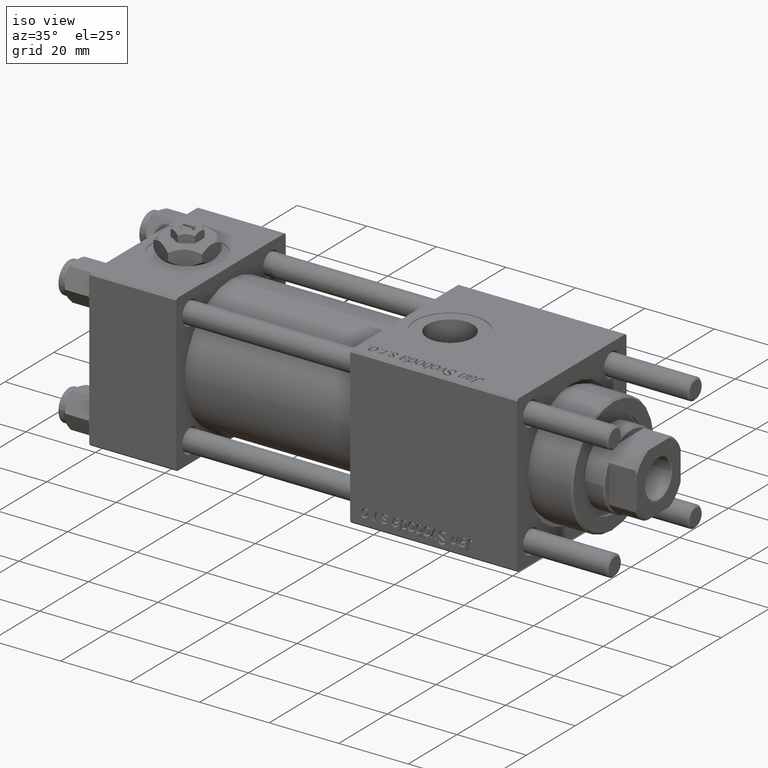
[diagram: clean part render]
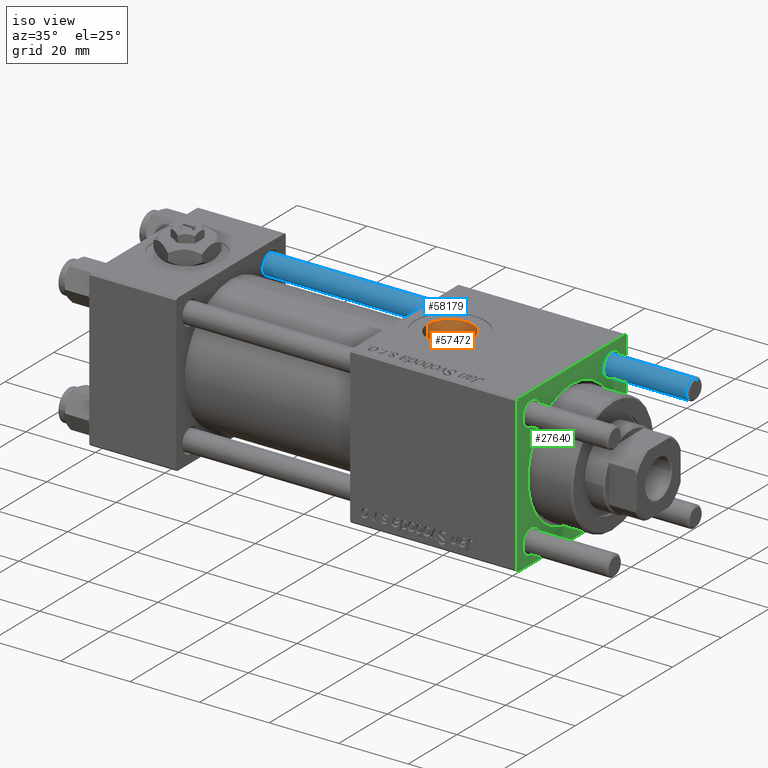
[diagram: same view with three faces highlighted in distinct colors, each labeled with its STEP entity id]
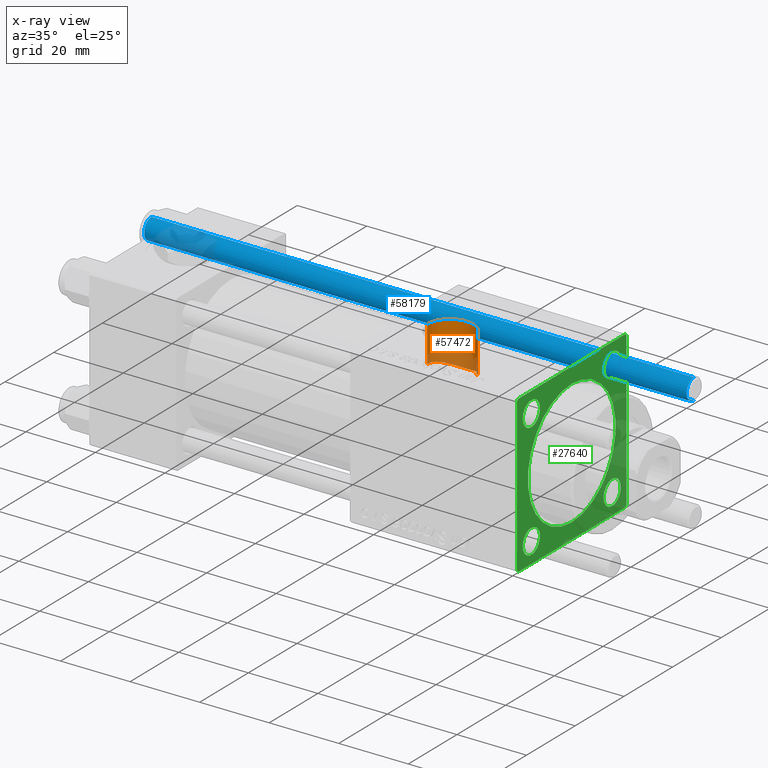
[diagram: x-ray of the same camera — body ghosted, the three highlighted faces saturated]
A machine part, iso view with three faces highlighted in distinct colors.
The next image is the same camera in x-ray (body ghosted, the three faces saturated) — at least one of them is partly hidden behind the body in this view.
Their STEP definitions:

[orange] entity #57472 — the highlighted cylindrical surface (edge-blend (fillet) strip) has radius 6.58 mm, axis along (0, 0, -1).
#9 = DIRECTION ( 'NONE',  ( 0.000000000000000000, 0.000000000000000000, -1.000000000000000000 ) ) ;
#2478 = CARTESIAN_POINT ( 'NONE',  ( 93.00866761081064737, 4.284465530078829687, 11.21374664850203651 ) ) ;
#2510 = EDGE_CURVE ( 'NONE', #25617, #51686, #4302, .T. ) ;
#2718 = VECTOR ( 'NONE', #51993, 1000.000000000000000 ) ;
#2765 = CARTESIAN_POINT ( 'NONE',  ( 94.03738513764136542, 2.645683237586368364, 11.71024983958922583 ) ) ;
#4302 = B_SPLINE_CURVE_WITH_KNOTS ( 'NONE', 3,
 ( #32579, #47095, #47383, #5925 ),
 .UNSPECIFIED., .F., .F.,
 ( 4, 4 ),
 ( 0.000000000000000000, 0.001922561461481083313 ),
 .UNSPECIFIED. ) ;
#4844 = CARTESIAN_POINT ( 'NONE',  ( 81.42000000000000171, 1.469576107744199801E-15, 12.00000000000000178 ) ) ;
#5451 = CARTESIAN_POINT ( 'NONE',  ( 82.78475287781570557, 4.030653862891778516, 11.30711776153493808 ) ) ;
#5739 = CARTESIAN_POINT ( 'NONE',  ( 81.42000000000004434, 0.3976591527617308608, 12.00000000000000533 ) ) ;
#5925 = CARTESIAN_POINT ( 'NONE',  ( 94.58000000000001251, 2.020172399822898567E-15, 16.50000000000000000 ) ) ;
#6623 = CARTESIAN_POINT ( 'NONE',  ( 89.01891393464315172, 6.512687558946026911, 10.07943174470872272 ) ) ;
#7214 = CARTESIAN_POINT ( 'NONE',  ( 91.23583201536588660, 5.742247844999425865, 10.53951819678818680 ) ) ;
#7333 = CARTESIAN_POINT ( 'NONE',  ( 94.30000000000001137, 1.899052395275078853, 11.84878052796995718 ) ) ;
#7508 = CARTESIAN_POINT ( 'NONE',  ( 88.61588198934801142, 6.563160196869033847, 10.04615237361005953 ) ) ;
#7810 = VECTOR ( 'NONE', #15088, 1000.000000000000000 ) ;
#9782 = CARTESIAN_POINT ( 'NONE',  ( 88.00000000000001421, -5.204170427930420494E-15, 45.29999999999999005 ) ) ;
#9893 = CARTESIAN_POINT ( 'NONE',  ( 84.16489446748850867, 5.350277438619694514, 10.74193308139748204 ) ) ;
#10480 = CARTESIAN_POINT ( 'NONE',  ( 81.45705646777146569, 0.8024769132757282319, 11.97956798721945937 ) ) ;
#11658 = CARTESIAN_POINT ( 'NONE',  ( 94.18483796286322729, 2.281096005955299155, 11.78754883984398028 ) ) ;
#13886 = AXIS2_PLACEMENT_3D ( 'NONE', #9782, #9, #27857 ) ;
#14311 = EDGE_LOOP ( 'NONE', ( #30899, #23270, #41327, #50802, #46106, #44208 ) ) ;
#14634 = CARTESIAN_POINT ( 'NONE',  ( 84.48443970993218954, 5.565459456558937035, 10.63203912863488831 ) ) ;
#15088 = DIRECTION ( 'NONE',  ( 0.000000000000000000, 0.000000000000000000, -1.000000000000000000 ) ) ;
#15875 = VERTEX_POINT ( 'NONE', #50671 ) ;
#16099 = CARTESIAN_POINT ( 'NONE',  ( 85.51128222741164109, 6.103612828859660944, 10.33283268697370794 ) ) ;
#16394 = CARTESIAN_POINT ( 'NONE',  ( 90.16689331473169489, 6.225350826966485229, 10.26038999243691663 ) ) ;
#16820 = VERTEX_POINT ( 'NONE', #38820 ) ;
#18478 = CARTESIAN_POINT ( 'NONE',  ( 82.55681353800792976, 3.717176390455099622, 11.41498337564068599 ) ) ;
#18781 = CARTESIAN_POINT ( 'NONE',  ( 82.25859302551884866, 3.220243119365621798, 11.56113513882421096 ) ) ;
#19070 = CARTESIAN_POINT ( 'NONE',  ( 81.99551268624995259, 2.698274377936877855, 11.69410398929686501 ) ) ;
#20824 = CARTESIAN_POINT ( 'NONE',  ( 89.79279569586574894, 6.343435066235461051, 10.18679906040885719 ) ) ;
#21677 = B_SPLINE_CURVE_WITH_KNOTS ( 'NONE', 3,
 ( #4844, #5739, #10480, #46607, #37705, #28541, #19070, #42151, #18781, #18478, #5451, #37116, #36825, #54892, #9893, #14634, #55189, #34148, #16099, #52210, #24989, #56071, #25560, #47196, #25278, #7508, #6623, #20824, #16394, #47783, #7214, #46897, #43046, #48071, #2478, #30006, #43343, #2765, #11658, #38878 ),
 .UNSPECIFIED., .F., .F.,
 ( 4, 2, 2, 2, 2, 2, 2, 2, 2, 2, 2, 2, 2, 2, 2, 2, 2, 2, 2, 4 ),
 ( 0.01908272948376852837, 0.02027211068882234235, 0.02146149189387615633, 0.02205618249640306158, 0.02265087309892997031, 0.02384025430398376347, 0.02502963550903755663, 0.02562432611156446882, 0.02621901671409138102, 0.02740839791914520540, 0.02800308852167211413, 0.02859777912419902285, 0.02978716032925284724, 0.03097654153430666815, 0.03216592273936048907, 0.03335530394441431346, 0.03454468514946813784, 0.03573406635452195529, 0.03692344755957577968, 0.03811282876462960406 ),
 .UNSPECIFIED. ) ;
#22557 = EDGE_CURVE ( 'NONE', #16820, #39659, #21677, .T. ) ;
#23270 = ORIENTED_EDGE ( 'NONE', *, *, #29470, .F. ) ;
#23433 = CARTESIAN_POINT ( 'NONE',  ( 88.00000000000001421, -5.204170427930420494E-15, 22.29999999999999716 ) ) ;
#24989 = CARTESIAN_POINT ( 'NONE',  ( 86.25189730832173041, 6.346629913135778622, 10.18446595840853597 ) ) ;
#25278 = CARTESIAN_POINT ( 'NONE',  ( 87.82138093783677846, 6.589573402368412047, 10.02884697551796478 ) ) ;
#25560 = CARTESIAN_POINT ( 'NONE',  ( 86.83419489992905937, 6.478967816313746297, 10.10070273480327430 ) ) ;
#25600 = EDGE_CURVE ( 'NONE', #25617, #39659, #42132, .T. ) ;
#25617 = VERTEX_POINT ( 'NONE', #42719 ) ;
#27580 = DIRECTION ( 'NONE',  ( 1.000000000000000000, 0.000000000000000000, 0.000000000000000000 ) ) ;
#27656 = CARTESIAN_POINT ( 'NONE',  ( 94.58000000000001251, 2.020172399822898567E-15, 16.50000000000000000 ) ) ;
#27857 = DIRECTION ( 'NONE',  ( -1.000000000000000000, 0.000000000000000000, 0.000000000000000000 ) ) ;
#28522 = CARTESIAN_POINT ( 'NONE',  ( 94.30000000000001137, 1.899052395275078853, 45.29999999999999005 ) ) ;
#28541 = CARTESIAN_POINT ( 'NONE',  ( 81.91700611386447406, 2.516447426058158410, 11.73468626117324298 ) ) ;
#29470 = EDGE_CURVE ( 'NONE', #39161, #15875, #37642, .T. ) ;
#30006 = CARTESIAN_POINT ( 'NONE',  ( 93.47237423914735643, 3.673760512163765313, 11.42839632120319138 ) ) ;
#30007 = EDGE_CURVE ( 'NONE', #39161, #16820, #38368, .T. ) ;
#30899 = ORIENTED_EDGE ( 'NONE', *, *, #41439, .F. ) ;
#32579 = CARTESIAN_POINT ( 'NONE',  ( 94.30000000000001137, 1.899052395275078853, 16.39035081991841025 ) ) ;
#32662 = DIRECTION ( 'NONE',  ( 0.000000000000000000, 0.000000000000000000, -1.000000000000000000 ) ) ;
#32854 = CARTESIAN_POINT ( 'NONE',  ( 94.58000000000001251, -4.398352834091461452E-15, 45.29999999999999005 ) ) ;
#34052 = CARTESIAN_POINT ( 'NONE',  ( 81.42000000000000171, -5.204170427930420494E-15, 22.29999999999999716 ) ) ;
#34148 = CARTESIAN_POINT ( 'NONE',  ( 85.15847559875078332, 5.947407073964698476, 10.42466916922575493 ) ) ;
#36825 = CARTESIAN_POINT ( 'NONE',  ( 83.56581515316379694, 4.876481215027403060, 10.96769431425572172 ) ) ;
#37116 = CARTESIAN_POINT ( 'NONE',  ( 83.29103396094789957, 4.612007366749330650, 11.08271043945085843 ) ) ;
#37642 = CIRCLE ( 'NONE', #45206, 6.580000000000002736 ) ;
#37705 = CARTESIAN_POINT ( 'NONE',  ( 81.70724907846415874, 1.963001504588604673, 11.84432785252562326 ) ) ;
#38368 = LINE ( 'NONE', #56439, #2718 ) ;
#38820 = CARTESIAN_POINT ( 'NONE',  ( 81.42000000000000171, 1.469576107744199801E-15, 12.00000000000000178 ) ) ;
#38878 = CARTESIAN_POINT ( 'NONE',  ( 94.30000000000001137, 1.899052395275078853, 11.84878052796995718 ) ) ;
#39161 = VERTEX_POINT ( 'NONE', #34052 ) ;
#39659 = VERTEX_POINT ( 'NONE', #7333 ) ;
#40571 = FACE_OUTER_BOUND ( 'NONE', #14311, .T. ) ;
#41327 = ORIENTED_EDGE ( 'NONE', *, *, #30007, .T. ) ;
#41439 = EDGE_CURVE ( 'NONE', #15875, #51686, #50614, .T. ) ;
#41497 = DIRECTION ( 'NONE',  ( -0.000000000000000000, -0.000000000000000000, -1.000000000000000000 ) ) ;
#42132 = LINE ( 'NONE', #28522, #47000 ) ;
#42151 = CARTESIAN_POINT ( 'NONE',  ( 82.16614062154590670, 3.049694619472453017, 11.60741639897010735 ) ) ;
#42719 = CARTESIAN_POINT ( 'NONE',  ( 94.30000000000001137, 1.899052395275078853, 16.39035081991841025 ) ) ;
#43046 = CARTESIAN_POINT ( 'NONE',  ( 92.18812012102893050, 5.089576879915268748, 10.87095059937355934 ) ) ;
#43343 = CARTESIAN_POINT ( 'NONE',  ( 93.68108973531616357, 3.342884759177825238, 11.53059896909529591 ) ) ;
#44208 = ORIENTED_EDGE ( 'NONE', *, *, #2510, .T. ) ;
#45206 = AXIS2_PLACEMENT_3D ( 'NONE', #23433, #41497, #27580 ) ;
#46106 = ORIENTED_EDGE ( 'NONE', *, *, #25600, .F. ) ;
#46607 = CARTESIAN_POINT ( 'NONE',  ( 81.60104442533068436, 1.583491968934688687, 11.90153652017558450 ) ) ;
#46897 = CARTESIAN_POINT ( 'NONE',  ( 91.88215370346611621, 5.326621984685210087, 10.75555448901162414 ) ) ;
#47000 = VECTOR ( 'NONE', #32662, 1000.000000000000000 ) ;
#47095 = CARTESIAN_POINT ( 'NONE',  ( 94.48644965059656897, 1.280516118087120070, 16.46201693687124745 ) ) ;
#47196 = CARTESIAN_POINT ( 'NONE',  ( 87.42561790000441135, 6.566992248200678617, 10.04387831561290234 ) ) ;
#47383 = CARTESIAN_POINT ( 'NONE',  ( 94.58000000000001251, 0.6476041116638452388, 16.50000000000000000 ) ) ;
#47783 = CARTESIAN_POINT ( 'NONE',  ( 90.89150051817900078, 5.923651265023259782, 10.43747821104793339 ) ) ;
#48071 = CARTESIAN_POINT ( 'NONE',  ( 92.75223196117465818, 4.567322448867138007, 11.10049212416560493 ) ) ;
#50614 = LINE ( 'NONE', #32854, #7810 ) ;
#50671 = CARTESIAN_POINT ( 'NONE',  ( 94.58000000000001251, -4.398352834091461452E-15, 22.29999999999999716 ) ) ;
#50802 = ORIENTED_EDGE ( 'NONE', *, *, #22557, .T. ) ;
#51686 = VERTEX_POINT ( 'NONE', #27656 ) ;
#51993 = DIRECTION ( 'NONE',  ( 0.000000000000000000, 0.000000000000000000, -1.000000000000000000 ) ) ;
#52210 = CARTESIAN_POINT ( 'NONE',  ( 86.06381098789942996, 6.291694806526731298, 10.21860835373034782 ) ) ;
#54787 = CYLINDRICAL_SURFACE ( 'NONE', #13886, 6.580000000000002736 ) ;
#54892 = CARTESIAN_POINT ( 'NONE',  ( 84.01097073899009615, 5.236455063200054383, 10.79801533958693049 ) ) ;
#55189 = CARTESIAN_POINT ( 'NONE',  ( 84.65070684754140018, 5.667099199368138329, 10.57805895296173126 ) ) ;
#56071 = CARTESIAN_POINT ( 'NONE',  ( 86.63652304892134737, 6.440225530122367203, 10.12553965146808110 ) ) ;
#56439 = CARTESIAN_POINT ( 'NONE',  ( 81.42000000000000171, -5.204170427930420494E-15, 45.29999999999999005 ) ) ;
#57472 = ADVANCED_FACE ( 'NONE', ( #40571 ), #54787, .F. ) ;

[blue] entity #58179 — the highlighted cylindrical surface (edge-blend (fillet) strip) has radius 3 mm, axis along (1, -0, -0).
#330 = CIRCLE ( 'NONE', #40852, 3.000000000000000444 ) ;
#687 = CYLINDRICAL_SURFACE ( 'NONE', #20490, 3.000000000000000444 ) ;
#924 = VECTOR ( 'NONE', #56986, 1000.000000000000000 ) ;
#3146 = DIRECTION ( 'NONE',  ( 1.000000000000000000, 0.000000000000000000, 0.000000000000000000 ) ) ;
#5346 = EDGE_CURVE ( 'NONE', #11805, #52071, #330, .T. ) ;
#8170 = CARTESIAN_POINT ( 'NONE',  ( 3.000000000000000444, 3.673940397442060361E-16, 156.5000000000000284 ) ) ;
#9765 = CARTESIAN_POINT ( 'NONE',  ( 0.000000000000000000, 0.000000000000000000, 0.4999999999999726885 ) ) ;
#11277 = CARTESIAN_POINT ( 'NONE',  ( 0.000000000000000000, 0.000000000000000000, 157.0000000000000000 ) ) ;
#11587 = CARTESIAN_POINT ( 'NONE',  ( 3.000000000000000444, 3.673940397442060361E-16, 0.4999999999999726885 ) ) ;
#11805 = VERTEX_POINT ( 'NONE', #20062 ) ;
#13445 = VERTEX_POINT ( 'NONE', #8170 ) ;
#18227 = CARTESIAN_POINT ( 'NONE',  ( -3.000000000000000444, 0.000000000000000000, 156.5000000000000284 ) ) ;
#18748 = FACE_OUTER_BOUND ( 'NONE', #56480, .T. ) ;
#20062 = CARTESIAN_POINT ( 'NONE',  ( -3.000000000000000444, 0.000000000000000000, 0.4999999999999726885 ) ) ;
#20490 = AXIS2_PLACEMENT_3D ( 'NONE', #11277, #37085, #29329 ) ;
#21299 = LINE ( 'NONE', #39360, #35101 ) ;
#24463 = VERTEX_POINT ( 'NONE', #18227 ) ;
#24523 = ORIENTED_EDGE ( 'NONE', *, *, #32178, .F. ) ;
#24667 = DIRECTION ( 'NONE',  ( 1.000000000000000000, 0.000000000000000000, 0.000000000000000000 ) ) ;
#27838 = DIRECTION ( 'NONE',  ( -0.000000000000000000, -0.000000000000000000, 1.000000000000000000 ) ) ;
#29329 = DIRECTION ( 'NONE',  ( -1.000000000000000000, 0.000000000000000000, 0.000000000000000000 ) ) ;
#32178 = EDGE_CURVE ( 'NONE', #13445, #52071, #52544, .T. ) ;
#32962 = CARTESIAN_POINT ( 'NONE',  ( 0.000000000000000000, 0.000000000000000000, 156.5000000000000284 ) ) ;
#35101 = VECTOR ( 'NONE', #57421, 1000.000000000000000 ) ;
#37085 = DIRECTION ( 'NONE',  ( -0.000000000000000000, -0.000000000000000000, -1.000000000000000000 ) ) ;
#38162 = EDGE_CURVE ( 'NONE', #24463, #11805, #21299, .T. ) ;
#39360 = CARTESIAN_POINT ( 'NONE',  ( -3.000000000000000444, 0.000000000000000000, 157.0000000000000000 ) ) ;
#40801 = EDGE_CURVE ( 'NONE', #13445, #24463, #45585, .T. ) ;
#40852 = AXIS2_PLACEMENT_3D ( 'NONE', #9765, #27838, #3146 ) ;
#43031 = DIRECTION ( 'NONE',  ( 0.000000000000000000, 0.000000000000000000, -1.000000000000000000 ) ) ;
#43742 = AXIS2_PLACEMENT_3D ( 'NONE', #32962, #43031, #24667 ) ;
#45530 = ORIENTED_EDGE ( 'NONE', *, *, #40801, .T. ) ;
#45585 = CIRCLE ( 'NONE', #43742, 3.000000000000000444 ) ;
#49617 = ORIENTED_EDGE ( 'NONE', *, *, #38162, .T. ) ;
#51838 = ORIENTED_EDGE ( 'NONE', *, *, #5346, .T. ) ;
#52071 = VERTEX_POINT ( 'NONE', #11587 ) ;
#52544 = LINE ( 'NONE', #53625, #924 ) ;
#53625 = CARTESIAN_POINT ( 'NONE',  ( 3.000000000000000444, 3.673940397442060361E-16, 157.0000000000000000 ) ) ;
#56480 = EDGE_LOOP ( 'NONE', ( #24523, #45530, #49617, #51838 ) ) ;
#56986 = DIRECTION ( 'NONE',  ( -0.000000000000000000, -0.000000000000000000, -1.000000000000000000 ) ) ;
#57421 = DIRECTION ( 'NONE',  ( -0.000000000000000000, -0.000000000000000000, -1.000000000000000000 ) ) ;
#58179 = ADVANCED_FACE ( 'NONE', ( #18748 ), #687, .T. ) ;

[green] entity #27640 — the highlighted planar face has unit normal (-1, 0, 0).
#273 = DIRECTION ( 'NONE',  ( -1.000000000000000000, 0.000000000000000000, -0.000000000000000000 ) ) ;
#382 = CARTESIAN_POINT ( 'NONE',  ( 123.0000000000000142, 16.59999999999999787, 13.09999999999997300 ) ) ;
#1161 = CARTESIAN_POINT ( 'NONE',  ( 123.0000000000000142, 0.000000000000000000, 0.000000000000000000 ) ) ;
#1191 = CIRCLE ( 'NONE', #46589, 3.500000000000031086 ) ;
#1941 = ORIENTED_EDGE ( 'NONE', *, *, #50780, .T. ) ;
#1994 = DIRECTION ( 'NONE',  ( -1.000000000000000000, 0.000000000000000000, -0.000000000000000000 ) ) ;
#2506 = CARTESIAN_POINT ( 'NONE',  ( 123.0000000000000142, 16.59999999999999787, 20.10000000000003340 ) ) ;
#2572 = AXIS2_PLACEMENT_3D ( 'NONE', #50583, #46159, #9727 ) ;
#3548 = EDGE_CURVE ( 'NONE', #10118, #57311, #25793, .T. ) ;
#3732 = EDGE_CURVE ( 'NONE', #47699, #27534, #1191, .T. ) ;
#3822 = VERTEX_POINT ( 'NONE', #15051 ) ;
#4417 = LINE ( 'NONE', #58589, #54315 ) ;
#4467 = EDGE_LOOP ( 'NONE', ( #28381, #41506 ) ) ;
#5021 = LINE ( 'NONE', #11171, #6938 ) ;
#5606 = FACE_BOUND ( 'NONE', #52136, .T. ) ;
#5768 = AXIS2_PLACEMENT_3D ( 'NONE', #51722, #29223, #38687 ) ;
#6435 = LINE ( 'NONE', #9695, #52605 ) ;
#6532 = CARTESIAN_POINT ( 'NONE',  ( 123.0000000000000142, -22.49999999999999645, 22.00000000000000711 ) ) ;
#6938 = VECTOR ( 'NONE', #11456, 1000.000000000000000 ) ;
#7982 = VERTEX_POINT ( 'NONE', #24925 ) ;
#8266 = EDGE_LOOP ( 'NONE', ( #17933, #11308 ) ) ;
#8545 = DIRECTION ( 'NONE',  ( 0.000000000000000000, 0.000000000000000000, 1.000000000000000000 ) ) ;
#8596 = AXIS2_PLACEMENT_3D ( 'NONE', #53883, #44718, #12757 ) ;
#8896 = LINE ( 'NONE', #31105, #40319 ) ;
#9147 = DIRECTION ( 'NONE',  ( 0.000000000000000000, 0.000000000000000000, 1.000000000000000000 ) ) ;
#9652 = AXIS2_PLACEMENT_3D ( 'NONE', #54061, #31554, #16813 ) ;
#9678 = EDGE_CURVE ( 'NONE', #52539, #37418, #5021, .T. ) ;
#9695 = CARTESIAN_POINT ( 'NONE',  ( 123.0000000000000142, 22.50000000000000355, 22.50000000000000355 ) ) ;
#9727 = DIRECTION ( 'NONE',  ( 0.000000000000000000, 0.000000000000000000, 1.000000000000000000 ) ) ;
#9738 = DIRECTION ( 'NONE',  ( -1.000000000000000000, 0.000000000000000000, -0.000000000000000000 ) ) ;
#10118 = VERTEX_POINT ( 'NONE', #10799 ) ;
#10186 = CIRCLE ( 'NONE', #29087, 18.00000000000000355 ) ;
#10429 = CARTESIAN_POINT ( 'NONE',  ( 123.0000000000000142, -16.59999999999999076, -20.10000000000003695 ) ) ;
#10799 = CARTESIAN_POINT ( 'NONE',  ( 123.0000000000000142, 2.204364238465235822E-15, 18.00000000000000355 ) ) ;
#11171 = CARTESIAN_POINT ( 'NONE',  ( 123.0000000000000142, 22.50000000000000355, -22.49999999999999645 ) ) ;
#11308 = ORIENTED_EDGE ( 'NONE', *, *, #3548, .T. ) ;
#11456 = DIRECTION ( 'NONE',  ( 0.000000000000000000, -1.000000000000000000, -7.709882115452476934E-17 ) ) ;
#11470 = CARTESIAN_POINT ( 'NONE',  ( 123.0000000000000142, -16.59999999999999076, -16.60000000000000853 ) ) ;
#12151 = CARTESIAN_POINT ( 'NONE',  ( 123.0000000000000142, 0.000000000000000000, 0.000000000000000000 ) ) ;
#12757 = DIRECTION ( 'NONE',  ( 0.000000000000000000, 0.000000000000000000, 1.000000000000000000 ) ) ;
#13001 = VERTEX_POINT ( 'NONE', #30304 ) ;
#13011 = VECTOR ( 'NONE', #18168, 1000.000000000000000 ) ;
#13232 = VERTEX_POINT ( 'NONE', #35466 ) ;
#13322 = DIRECTION ( 'NONE',  ( -0.000000000000000000, 0.000000000000000000, 1.000000000000000000 ) ) ;
#13671 = VERTEX_POINT ( 'NONE', #25582 ) ;
#14077 = DIRECTION ( 'NONE',  ( 0.000000000000000000, 0.000000000000000000, 1.000000000000000000 ) ) ;
#14197 = CARTESIAN_POINT ( 'NONE',  ( 123.0000000000000142, -22.49999999999999645, 22.00000000000000711 ) ) ;
#15026 = DIRECTION ( 'NONE',  ( 0.000000000000000000, 0.000000000000000000, -1.000000000000000000 ) ) ;
#15029 = CARTESIAN_POINT ( 'NONE',  ( 123.0000000000000142, -21.99999999999998224, -22.50000000000000000 ) ) ;
#15051 = CARTESIAN_POINT ( 'NONE',  ( 123.0000000000000142, -22.49999999999999645, -21.99999999999997868 ) ) ;
#15897 = AXIS2_PLACEMENT_3D ( 'NONE', #1161, #273, #13322 ) ;
#16251 = ORIENTED_EDGE ( 'NONE', *, *, #21761, .T. ) ;
#16813 = DIRECTION ( 'NONE',  ( 0.000000000000000000, 0.000000000000000000, 1.000000000000000000 ) ) ;
#17933 = ORIENTED_EDGE ( 'NONE', *, *, #22333, .T. ) ;
#18069 = CIRCLE ( 'NONE', #44572, 3.500000000000031086 ) ;
#18168 = DIRECTION ( 'NONE',  ( -0.000000000000000000, 0.7071067811865573427, 0.7071067811865378028 ) ) ;
#18509 = DIRECTION ( 'NONE',  ( -1.000000000000000000, 0.000000000000000000, -0.000000000000000000 ) ) ;
#19044 = ORIENTED_EDGE ( 'NONE', *, *, #40522, .T. ) ;
#19553 = CARTESIAN_POINT ( 'NONE',  ( 123.0000000000000142, -21.99999999999998224, 22.49999999999999289 ) ) ;
#19943 = CIRCLE ( 'NONE', #8596, 3.499999999999989342 ) ;
#20543 = CIRCLE ( 'NONE', #25241, 3.500000000000031086 ) ;
#21139 = ORIENTED_EDGE ( 'NONE', *, *, #57468, .T. ) ;
#21761 = EDGE_CURVE ( 'NONE', #52539, #13001, #37105, .T. ) ;
#22333 = EDGE_CURVE ( 'NONE', #57311, #10118, #10186, .T. ) ;
#22804 = ORIENTED_EDGE ( 'NONE', *, *, #57070, .F. ) ;
#23071 = PLANE ( 'NONE',  #15897 ) ;
#23653 = VERTEX_POINT ( 'NONE', #2506 ) ;
#23666 = FACE_OUTER_BOUND ( 'NONE', #50884, .T. ) ;
#23770 = AXIS2_PLACEMENT_3D ( 'NONE', #41004, #18509, #14077 ) ;
#23954 = DIRECTION ( 'NONE',  ( -0.000000000000000000, -0.7071067811865573427, -0.7071067811865378028 ) ) ;
#24375 = DIRECTION ( 'NONE',  ( -1.000000000000000000, 0.000000000000000000, -0.000000000000000000 ) ) ;
#24925 = CARTESIAN_POINT ( 'NONE',  ( 123.0000000000000142, -16.59999999999999076, 20.10000000000000142 ) ) ;
#25241 = AXIS2_PLACEMENT_3D ( 'NONE', #55763, #24375, #37096 ) ;
#25582 = CARTESIAN_POINT ( 'NONE',  ( 123.0000000000000142, 21.99999999999996092, 22.50000000000000355 ) ) ;
#25583 = EDGE_CURVE ( 'NONE', #54579, #13232, #20543, .T. ) ;
#25710 = EDGE_CURVE ( 'NONE', #23653, #58152, #45076, .T. ) ;
#25721 = CARTESIAN_POINT ( 'NONE',  ( 123.0000000000000142, -22.49999999999999645, 22.49999999999999289 ) ) ;
#25793 = CIRCLE ( 'NONE', #29606, 18.00000000000000355 ) ;
#26047 = DIRECTION ( 'NONE',  ( -1.000000000000000000, 0.000000000000000000, -0.000000000000000000 ) ) ;
#26839 = CARTESIAN_POINT ( 'NONE',  ( 123.0000000000000142, 22.50000000000000355, 21.99999999999997513 ) ) ;
#27211 = ORIENTED_EDGE ( 'NONE', *, *, #41750, .T. ) ;
#27284 = CARTESIAN_POINT ( 'NONE',  ( 123.0000000000000142, 16.59999999999999787, -13.09999999999997300 ) ) ;
#27534 = VERTEX_POINT ( 'NONE', #40249 ) ;
#27640 = ADVANCED_FACE ( 'NONE', ( #5606, #54457, #53875, #32240, #50307, #23666 ), #23071, .F. ) ;
#27843 = VECTOR ( 'NONE', #23954, 1000.000000000000000 ) ;
#28381 = ORIENTED_EDGE ( 'NONE', *, *, #42740, .T. ) ;
#28406 = LINE ( 'NONE', #14197, #27843 ) ;
#28447 = VERTEX_POINT ( 'NONE', #35567 ) ;
#28484 = VECTOR ( 'NONE', #43787, 1000.000000000000000 ) ;
#29087 = AXIS2_PLACEMENT_3D ( 'NONE', #58578, #9738, #9147 ) ;
#29223 = DIRECTION ( 'NONE',  ( -1.000000000000000000, 0.000000000000000000, -0.000000000000000000 ) ) ;
#29606 = AXIS2_PLACEMENT_3D ( 'NONE', #12151, #26047, #57141 ) ;
#30304 = CARTESIAN_POINT ( 'NONE',  ( 123.0000000000000142, 22.50000000000000355, -21.99999999999999645 ) ) ;
#30907 = ORIENTED_EDGE ( 'NONE', *, *, #3732, .T. ) ;
#31105 = CARTESIAN_POINT ( 'NONE',  ( 123.0000000000000142, 22.50000000000000355, 22.50000000000000355 ) ) ;
#31554 = DIRECTION ( 'NONE',  ( -1.000000000000000000, 0.000000000000000000, -0.000000000000000000 ) ) ;
#31626 = DIRECTION ( 'NONE',  ( -1.000000000000000000, 0.000000000000000000, -0.000000000000000000 ) ) ;
#32240 = FACE_BOUND ( 'NONE', #46911, .T. ) ;
#32255 = VECTOR ( 'NONE', #51125, 999.9999999999998863 ) ;
#32396 = VERTEX_POINT ( 'NONE', #6532 ) ;
#34542 = DIRECTION ( 'NONE',  ( 0.000000000000000000, 0.000000000000000000, 1.000000000000000000 ) ) ;
#34607 = LINE ( 'NONE', #25721, #28484 ) ;
#35466 = CARTESIAN_POINT ( 'NONE',  ( 123.0000000000000142, 16.59999999999999787, -20.10000000000003340 ) ) ;
#35567 = CARTESIAN_POINT ( 'NONE',  ( 123.0000000000000142, -16.59999999999999076, 13.10000000000001741 ) ) ;
#36146 = CIRCLE ( 'NONE', #9652, 3.500000000000031086 ) ;
#36260 = ORIENTED_EDGE ( 'NONE', *, *, #25710, .T. ) ;
#36325 = EDGE_CURVE ( 'NONE', #7982, #28447, #19943, .T. ) ;
#36510 = EDGE_CURVE ( 'NONE', #32396, #3822, #34607, .T. ) ;
#36787 = EDGE_CURVE ( 'NONE', #28447, #7982, #39788, .T. ) ;
#37096 = DIRECTION ( 'NONE',  ( 0.000000000000000000, 0.000000000000000000, 1.000000000000000000 ) ) ;
#37105 = LINE ( 'NONE', #50731, #13011 ) ;
#37418 = VERTEX_POINT ( 'NONE', #15029 ) ;
#37563 = EDGE_CURVE ( 'NONE', #27534, #47699, #18069, .T. ) ;
#37632 = EDGE_LOOP ( 'NONE', ( #19044, #36260 ) ) ;
#38687 = DIRECTION ( 'NONE',  ( 0.000000000000000000, 0.000000000000000000, 1.000000000000000000 ) ) ;
#39718 = ORIENTED_EDGE ( 'NONE', *, *, #9678, .F. ) ;
#39788 = CIRCLE ( 'NONE', #5768, 3.499999999999989342 ) ;
#40249 = CARTESIAN_POINT ( 'NONE',  ( 123.0000000000000142, -16.59999999999999076, -13.09999999999997655 ) ) ;
#40319 = VECTOR ( 'NONE', #49171, 1000.000000000000000 ) ;
#40522 = EDGE_CURVE ( 'NONE', #58152, #23653, #36146, .T. ) ;
#41004 = CARTESIAN_POINT ( 'NONE',  ( 123.0000000000000142, 16.59999999999999787, -16.60000000000000497 ) ) ;
#41352 = CARTESIAN_POINT ( 'NONE',  ( 123.0000000000000142, 22.00000000000000355, -22.49999999999999645 ) ) ;
#41506 = ORIENTED_EDGE ( 'NONE', *, *, #25583, .T. ) ;
#41750 = EDGE_CURVE ( 'NONE', #3822, #37418, #42541, .T. ) ;
#42411 = CARTESIAN_POINT ( 'NONE',  ( 123.0000000000000142, 0.000000000000000000, -18.00000000000000355 ) ) ;
#42541 = LINE ( 'NONE', #46116, #32255 ) ;
#42740 = EDGE_CURVE ( 'NONE', #13232, #54579, #49295, .T. ) ;
#43787 = DIRECTION ( 'NONE',  ( 0.000000000000000000, 0.000000000000000000, -1.000000000000000000 ) ) ;
#44572 = AXIS2_PLACEMENT_3D ( 'NONE', #11470, #1994, #34542 ) ;
#44701 = DIRECTION ( 'NONE',  ( 0.000000000000000000, -0.7071067811865573427, 0.7071067811865378028 ) ) ;
#44718 = DIRECTION ( 'NONE',  ( -1.000000000000000000, 0.000000000000000000, -0.000000000000000000 ) ) ;
#44966 = CARTESIAN_POINT ( 'NONE',  ( 123.0000000000000142, -16.59999999999999076, -16.60000000000000853 ) ) ;
#45076 = CIRCLE ( 'NONE', #2572, 3.500000000000031086 ) ;
#45299 = ORIENTED_EDGE ( 'NONE', *, *, #50899, .T. ) ;
#46116 = CARTESIAN_POINT ( 'NONE',  ( 123.0000000000000142, -21.99999999999999645, -22.50000000000000000 ) ) ;
#46159 = DIRECTION ( 'NONE',  ( -1.000000000000000000, 0.000000000000000000, -0.000000000000000000 ) ) ;
#46239 = ORIENTED_EDGE ( 'NONE', *, *, #37563, .T. ) ;
#46589 = AXIS2_PLACEMENT_3D ( 'NONE', #44966, #31626, #8545 ) ;
#46911 = EDGE_LOOP ( 'NONE', ( #57631, #58205 ) ) ;
#47699 = VERTEX_POINT ( 'NONE', #10429 ) ;
#48347 = ORIENTED_EDGE ( 'NONE', *, *, #36510, .T. ) ;
#48611 = VERTEX_POINT ( 'NONE', #19553 ) ;
#49085 = VERTEX_POINT ( 'NONE', #26839 ) ;
#49171 = DIRECTION ( 'NONE',  ( 0.000000000000000000, -1.000000000000000000, -2.312964634635742957E-16 ) ) ;
#49295 = CIRCLE ( 'NONE', #23770, 3.500000000000031086 ) ;
#50307 = FACE_BOUND ( 'NONE', #8266, .T. ) ;
#50583 = CARTESIAN_POINT ( 'NONE',  ( 123.0000000000000142, 16.59999999999999787, 16.60000000000000497 ) ) ;
#50731 = CARTESIAN_POINT ( 'NONE',  ( 123.0000000000000142, 22.50000000000000355, -22.00000000000001066 ) ) ;
#50780 = EDGE_CURVE ( 'NONE', #49085, #13671, #4417, .T. ) ;
#50884 = EDGE_LOOP ( 'NONE', ( #48347, #27211, #39718, #16251, #22804, #1941, #21139, #45299 ) ) ;
#50899 = EDGE_CURVE ( 'NONE', #48611, #32396, #28406, .T. ) ;
#51125 = DIRECTION ( 'NONE',  ( 0.000000000000000000, 0.7071067811865425767, -0.7071067811865525687 ) ) ;
#51722 = CARTESIAN_POINT ( 'NONE',  ( 123.0000000000000142, -16.59999999999999076, 16.60000000000000853 ) ) ;
#52136 = EDGE_LOOP ( 'NONE', ( #30907, #46239 ) ) ;
#52539 = VERTEX_POINT ( 'NONE', #41352 ) ;
#52605 = VECTOR ( 'NONE', #15026, 1000.000000000000000 ) ;
#53875 = FACE_BOUND ( 'NONE', #37632, .T. ) ;
#53883 = CARTESIAN_POINT ( 'NONE',  ( 123.0000000000000142, -16.59999999999999076, 16.60000000000000853 ) ) ;
#54061 = CARTESIAN_POINT ( 'NONE',  ( 123.0000000000000142, 16.59999999999999787, 16.60000000000000497 ) ) ;
#54315 = VECTOR ( 'NONE', #44701, 1000.000000000000000 ) ;
#54457 = FACE_BOUND ( 'NONE', #4467, .T. ) ;
#54579 = VERTEX_POINT ( 'NONE', #27284 ) ;
#55763 = CARTESIAN_POINT ( 'NONE',  ( 123.0000000000000142, 16.59999999999999787, -16.60000000000000497 ) ) ;
#57070 = EDGE_CURVE ( 'NONE', #49085, #13001, #6435, .T. ) ;
#57141 = DIRECTION ( 'NONE',  ( 0.000000000000000000, 0.000000000000000000, 1.000000000000000000 ) ) ;
#57311 = VERTEX_POINT ( 'NONE', #42411 ) ;
#57468 = EDGE_CURVE ( 'NONE', #13671, #48611, #8896, .T. ) ;
#57631 = ORIENTED_EDGE ( 'NONE', *, *, #36787, .T. ) ;
#58152 = VERTEX_POINT ( 'NONE', #382 ) ;
#58205 = ORIENTED_EDGE ( 'NONE', *, *, #36325, .T. ) ;
#58578 = CARTESIAN_POINT ( 'NONE',  ( 123.0000000000000142, 0.000000000000000000, 0.000000000000000000 ) ) ;
#58589 = CARTESIAN_POINT ( 'NONE',  ( 123.0000000000000142, 21.99999999999996092, 22.50000000000000355 ) ) ;